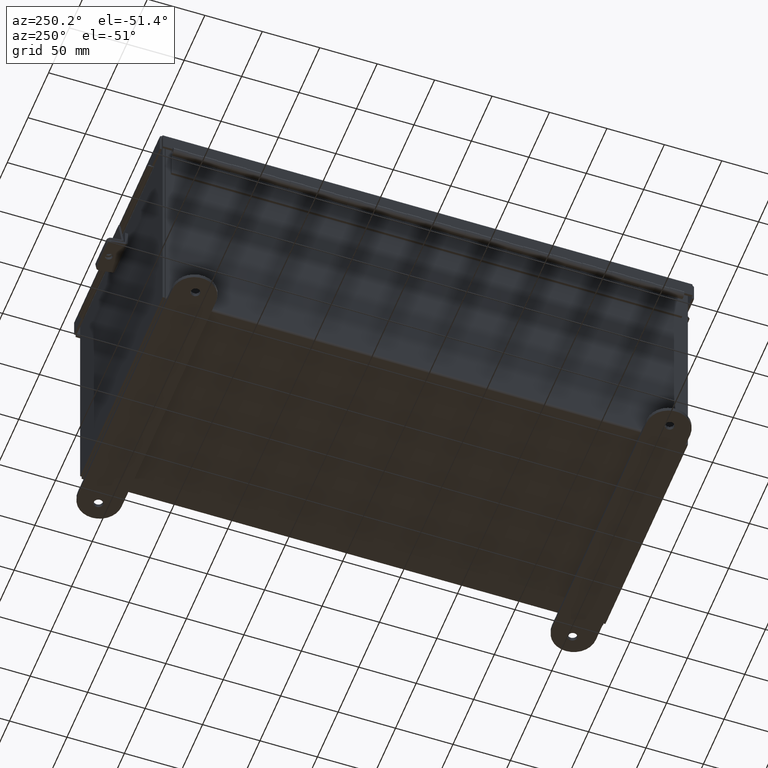
[diagram: clean part render]
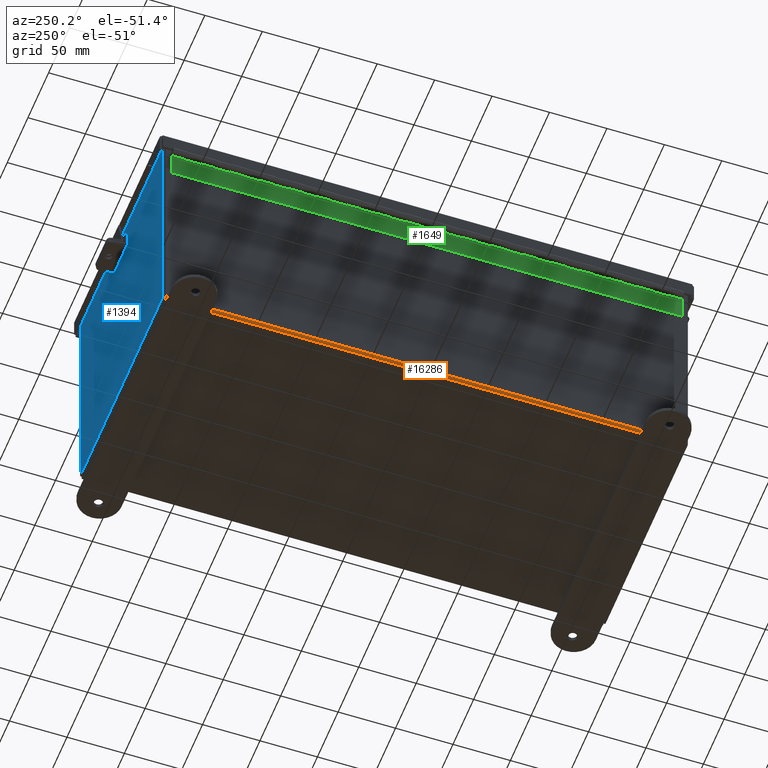
[diagram: same view with three faces highlighted in distinct colors, each labeled with its STEP entity id]
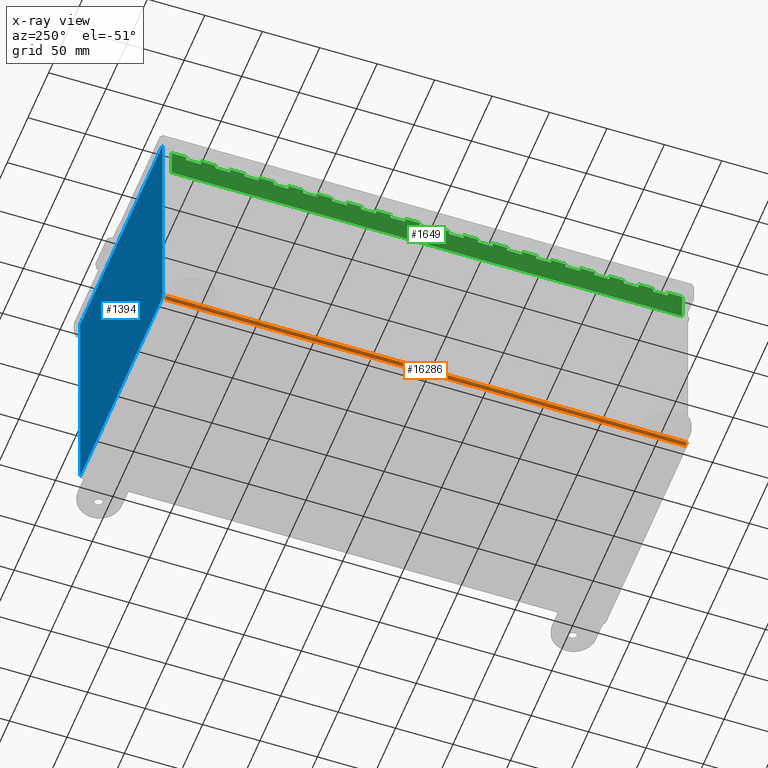
[diagram: x-ray of the same camera — body ghosted, the three highlighted faces saturated]
A machine part, auxiliary view with three faces highlighted in distinct colors.
The next image is the same camera in x-ray (body ghosted, the three faces saturated) — at least one of them is partly hidden behind the body in this view.
Their STEP definitions:

[orange] entity #16286 — the highlighted cylindrical surface (edge-blend (fillet) strip) has radius 2.2276 mm, axis along (0, -1, 0).
#360 = CARTESIAN_POINT ( 'NONE',  ( -3.912299999999999200, -8.925299999999996500, 0.01300000000000042300 ) ) ;
#1877 = DIRECTION ( 'NONE',  ( 0.0000000000000000000, 0.0000000000000000000, -1.000000000000000000 ) ) ;
#2773 = ORIENTED_EDGE ( 'NONE', *, *, #4183, .F. ) ;
#3153 = AXIS2_PLACEMENT_3D ( 'NONE', #360, #10839, #1877 ) ;
#3295 = DIRECTION ( 'NONE',  ( 0.0000000000000000000, -1.000000000000000000, 0.0000000000000000000 ) ) ;
#4093 = VECTOR ( 'NONE', #5475, 39.37007874015748100 ) ;
#4183 = EDGE_CURVE ( 'NONE', #10301, #8897, #15296, .T. ) ;
#5072 = CYLINDRICAL_SURFACE ( 'NONE', #15212, 0.08770000000000026400 ) ;
#5475 = DIRECTION ( 'NONE',  ( 1.065092651769884500E-031, 1.000000000000000000, -3.060791226809479400E-017 ) ) ;
#5535 = FACE_OUTER_BOUND ( 'NONE', #10209, .T. ) ;
#6492 = ORIENTED_EDGE ( 'NONE', *, *, #19234, .F. ) ;
#6797 = VERTEX_POINT ( 'NONE', #18677 ) ;
#7315 = CARTESIAN_POINT ( 'NONE',  ( -3.912299999999999200, -8.925299999999996500, -0.07469999999999966900 ) ) ;
#7416 = AXIS2_PLACEMENT_3D ( 'NONE', #8212, #18563, #9728 ) ;
#8044 = LINE ( 'NONE', #8337, #4093 ) ;
#8212 = CARTESIAN_POINT ( 'NONE',  ( -3.912299999999999200, 8.925299999999996500, 0.01300000000000042300 ) ) ;
#8337 = CARTESIAN_POINT ( 'NONE',  ( -3.999999999999999600, 8.925299999999996500, 0.01299999999999984300 ) ) ;
#8865 = CARTESIAN_POINT ( 'NONE',  ( -3.912299999999999200, 8.925299999999998200, -0.07470000000000000300 ) ) ;
#8897 = VERTEX_POINT ( 'NONE', #8865 ) ;
#9355 = VERTEX_POINT ( 'NONE', #15489 ) ;
#9728 = DIRECTION ( 'NONE',  ( 0.0000000000000000000, 0.0000000000000000000, -1.000000000000000000 ) ) ;
#9730 = CIRCLE ( 'NONE', #3153, 0.08770000000000009700 ) ;
#9804 = CIRCLE ( 'NONE', #7416, 0.08770000000000009700 ) ;
#10209 = EDGE_LOOP ( 'NONE', ( #2773, #6492, #10978, #14164 ) ) ;
#10301 = VERTEX_POINT ( 'NONE', #7315 ) ;
#10839 = DIRECTION ( 'NONE',  ( 0.0000000000000000000, -1.000000000000000000, 0.0000000000000000000 ) ) ;
#10978 = ORIENTED_EDGE ( 'NONE', *, *, #17940, .T. ) ;
#11880 = VECTOR ( 'NONE', #14793, 39.37007874015748100 ) ;
#12647 = EDGE_CURVE ( 'NONE', #8897, #9355, #9804, .T. ) ;
#13340 = CARTESIAN_POINT ( 'NONE',  ( -3.912299999999999200, -8.925299999999998200, -0.07469999999999966900 ) ) ;
#13780 = CARTESIAN_POINT ( 'NONE',  ( -3.912299999999999200, -8.925299999999998200, 0.01300000000000042300 ) ) ;
#14164 = ORIENTED_EDGE ( 'NONE', *, *, #12647, .F. ) ;
#14793 = DIRECTION ( 'NONE',  ( -0.0000000000000000000, 1.000000000000000000, -0.0000000000000000000 ) ) ;
#15212 = AXIS2_PLACEMENT_3D ( 'NONE', #13780, #3295, #16732 ) ;
#15296 = LINE ( 'NONE', #13340, #11880 ) ;
#15489 = CARTESIAN_POINT ( 'NONE',  ( -3.999999999999999600, 8.925299999999996500, 0.01300000000000011600 ) ) ;
#16286 = ADVANCED_FACE ( 'NONE', ( #5535 ), #5072, .T. ) ;
#16732 = DIRECTION ( 'NONE',  ( -1.000000000000000000, 0.0000000000000000000, -3.480030137311043200E-015 ) ) ;
#17940 = EDGE_CURVE ( 'NONE', #6797, #9355, #8044, .T. ) ;
#18563 = DIRECTION ( 'NONE',  ( -0.0000000000000000000, 1.000000000000000000, -0.0000000000000000000 ) ) ;
#18677 = CARTESIAN_POINT ( 'NONE',  ( -3.999999999999999600, -8.925299999999998200, 0.01300000000000039000 ) ) ;
#19234 = EDGE_CURVE ( 'NONE', #6797, #10301, #9730, .T. ) ;

[blue] entity #1394 — the highlighted planar face has unit normal (0, -1, 0).
#106 = ORIENTED_EDGE ( 'NONE', *, *, #19086, .T. ) ;
#418 = CARTESIAN_POINT ( 'NONE',  ( -3.600975000000000000, 0.0000000000000000000, 3.874949999999999200 ) ) ;
#596 = LINE ( 'NONE', #14291, #4096 ) ;
#666 = VERTEX_POINT ( 'NONE', #10781 ) ;
#692 = VERTEX_POINT ( 'NONE', #9246 ) ;
#822 = EDGE_CURVE ( 'NONE', #6467, #11210, #17951, .T. ) ;
#1004 = FACE_OUTER_BOUND ( 'NONE', #2651, .T. ) ;
#1089 = ORIENTED_EDGE ( 'NONE', *, *, #2119, .T. ) ;
#1389 = DIRECTION ( 'NONE',  ( -2.170286390199978800E-014, 0.0000000000000000000, -1.000000000000000000 ) ) ;
#1394 = ADVANCED_FACE ( 'NONE', ( #1004 ), #7605, .F. ) ;
#1851 = DIRECTION ( 'NONE',  ( -0.0000000000000000000, 1.000000000000000000, -0.0000000000000000000 ) ) ;
#1947 = DIRECTION ( 'NONE',  ( 0.0000000000000000000, 0.0000000000000000000, -1.000000000000000000 ) ) ;
#1997 = LINE ( 'NONE', #8120, #17307 ) ;
#2119 = EDGE_CURVE ( 'NONE', #10037, #6467, #7234, .T. ) ;
#2207 = DIRECTION ( 'NONE',  ( 1.000000000000000000, 0.0000000000000000000, 0.0000000000000000000 ) ) ;
#2651 = EDGE_LOOP ( 'NONE', ( #12038, #13603, #14547, #15011, #16145, #16589, #17717, #18214, #106, #1089, #4095, #4573 ) ) ;
#2891 = CARTESIAN_POINT ( 'NONE',  ( 3.619649999999999100, 0.0000000000000000000, 3.874949999999999200 ) ) ;
#3462 = VERTEX_POINT ( 'NONE', #10674 ) ;
#3813 = CARTESIAN_POINT ( 'NONE',  ( 0.0000000000000000000, 0.0000000000000000000, 0.0000000000000000000 ) ) ;
#3919 = LINE ( 'NONE', #12194, #10001 ) ;
#4095 = ORIENTED_EDGE ( 'NONE', *, *, #822, .T. ) ;
#4096 = VECTOR ( 'NONE', #17172, 39.37007874015748100 ) ;
#4573 = ORIENTED_EDGE ( 'NONE', *, *, #15770, .T. ) ;
#4583 = VECTOR ( 'NONE', #8736, 39.37007874015748100 ) ;
#5107 = DIRECTION ( 'NONE',  ( -0.0000000000000000000, -0.0000000000000000000, 1.000000000000000000 ) ) ;
#5199 = VECTOR ( 'NONE', #6293, 39.37007874015748100 ) ;
#5423 = CARTESIAN_POINT ( 'NONE',  ( -3.925300000000000500, 0.0000000000000000000, 3.925299999999999600 ) ) ;
#5606 = CIRCLE ( 'NONE', #8945, 0.01867500000000003900 ) ;
#5725 = CARTESIAN_POINT ( 'NONE',  ( 3.925299999999999100, 0.0000000000000000000, 3.925299999999999600 ) ) ;
#5955 = EDGE_CURVE ( 'NONE', #16236, #3462, #3919, .T. ) ;
#6053 = CARTESIAN_POINT ( 'NONE',  ( -3.925300000000000500, 0.0000000000000000000, 3.925299999999999600 ) ) ;
#6293 = DIRECTION ( 'NONE',  ( 1.000000000000000000, 0.0000000000000000000, 0.0000000000000000000 ) ) ;
#6467 = VERTEX_POINT ( 'NONE', #11898 ) ;
#7234 = LINE ( 'NONE', #12469, #19054 ) ;
#7322 = EDGE_CURVE ( 'NONE', #12262, #16236, #15708, .T. ) ;
#7457 = EDGE_CURVE ( 'NONE', #666, #11907, #1997, .T. ) ;
#7582 = EDGE_CURVE ( 'NONE', #11123, #12262, #596, .T. ) ;
#7605 = PLANE ( 'NONE',  #13042 ) ;
#7865 = CARTESIAN_POINT ( 'NONE',  ( -3.582300000000000000, 1.195183497228115100E-015, 3.912299999999999200 ) ) ;
#8058 = CARTESIAN_POINT ( 'NONE',  ( 3.925299999999999100, 0.0000000000000000000, -3.925300000000000500 ) ) ;
#8070 = CARTESIAN_POINT ( 'NONE',  ( 3.925299999999999100, 0.0000000000000000000, 3.925299999999999600 ) ) ;
#8120 = CARTESIAN_POINT ( 'NONE',  ( -3.925300000000000500, 0.0000000000000000000, 3.925299999999999600 ) ) ;
#8736 = DIRECTION ( 'NONE',  ( 0.0000000000000000000, 0.0000000000000000000, -1.000000000000000000 ) ) ;
#8765 = CARTESIAN_POINT ( 'NONE',  ( 3.582299999999999200, 0.0000000000000000000, 0.0000000000000000000 ) ) ;
#8812 = CARTESIAN_POINT ( 'NONE',  ( 3.619649999999915200, -0.0000000000000000000, -7.855677132287169600E-014 ) ) ;
#8945 = AXIS2_PLACEMENT_3D ( 'NONE', #10818, #1851, #12324 ) ;
#9049 = LINE ( 'NONE', #17065, #12597 ) ;
#9088 = VERTEX_POINT ( 'NONE', #18159 ) ;
#9117 = EDGE_CURVE ( 'NONE', #11123, #9088, #9166, .T. ) ;
#9166 = LINE ( 'NONE', #7865, #5199 ) ;
#9246 = CARTESIAN_POINT ( 'NONE',  ( 3.582299999999999200, 0.0000000000000000000, 3.874949999999999200 ) ) ;
#9844 = LINE ( 'NONE', #8765, #17658 ) ;
#10001 = VECTOR ( 'NONE', #16581, 39.37007874015748100 ) ;
#10037 = VERTEX_POINT ( 'NONE', #8058 ) ;
#10263 = EDGE_CURVE ( 'NONE', #692, #9088, #9844, .T. ) ;
#10627 = EDGE_CURVE ( 'NONE', #12273, #692, #5606, .T. ) ;
#10674 = CARTESIAN_POINT ( 'NONE',  ( -3.619650000000000500, 0.0000000000000000000, 3.925299999999999600 ) ) ;
#10781 = CARTESIAN_POINT ( 'NONE',  ( 3.619650000000000500, 0.0000000000000000000, 3.925299999999999600 ) ) ;
#10818 = CARTESIAN_POINT ( 'NONE',  ( 3.600974999999999100, 0.0000000000000000000, 3.874949999999999200 ) ) ;
#10894 = DIRECTION ( 'NONE',  ( -0.0000000000000000000, 1.000000000000000000, -0.0000000000000000000 ) ) ;
#11088 = EDGE_CURVE ( 'NONE', #666, #12273, #13083, .T. ) ;
#11123 = VERTEX_POINT ( 'NONE', #14651 ) ;
#11210 = VERTEX_POINT ( 'NONE', #6053 ) ;
#11898 = CARTESIAN_POINT ( 'NONE',  ( -3.925300000000000500, 0.0000000000000000000, -3.925300000000000500 ) ) ;
#11907 = VERTEX_POINT ( 'NONE', #8070 ) ;
#12038 = ORIENTED_EDGE ( 'NONE', *, *, #5955, .F. ) ;
#12194 = CARTESIAN_POINT ( 'NONE',  ( -3.619650000000000500, -0.0000000000000000000, 0.0000000000000000000 ) ) ;
#12262 = VERTEX_POINT ( 'NONE', #14716 ) ;
#12273 = VERTEX_POINT ( 'NONE', #2891 ) ;
#12324 = DIRECTION ( 'NONE',  ( 0.0000000000000000000, 0.0000000000000000000, -1.000000000000000000 ) ) ;
#12469 = CARTESIAN_POINT ( 'NONE',  ( -3.925300000000000500, 0.0000000000000000000, -3.925300000000000500 ) ) ;
#12597 = VECTOR ( 'NONE', #15593, 39.37007874015748100 ) ;
#12965 = DIRECTION ( 'NONE',  ( -1.000000000000000000, -0.0000000000000000000, -0.0000000000000000000 ) ) ;
#13042 = AXIS2_PLACEMENT_3D ( 'NONE', #3813, #13145, #14389 ) ;
#13083 = LINE ( 'NONE', #8812, #16479 ) ;
#13145 = DIRECTION ( 'NONE',  ( 0.0000000000000000000, -1.000000000000000000, 0.0000000000000000000 ) ) ;
#13603 = ORIENTED_EDGE ( 'NONE', *, *, #7322, .F. ) ;
#14291 = CARTESIAN_POINT ( 'NONE',  ( -3.582300000000000000, -0.0000000000000000000, 0.0000000000000000000 ) ) ;
#14389 = DIRECTION ( 'NONE',  ( 0.0000000000000000000, -0.0000000000000000000, -1.000000000000000000 ) ) ;
#14514 = VECTOR ( 'NONE', #5107, 39.37007874015748100 ) ;
#14547 = ORIENTED_EDGE ( 'NONE', *, *, #7582, .F. ) ;
#14651 = CARTESIAN_POINT ( 'NONE',  ( -3.582300000000000000, 1.195183497228115100E-015, 3.912299999999999200 ) ) ;
#14716 = CARTESIAN_POINT ( 'NONE',  ( -3.582300000000000000, -0.0000000000000000000, 3.874949999999999200 ) ) ;
#15011 = ORIENTED_EDGE ( 'NONE', *, *, #9117, .T. ) ;
#15593 = DIRECTION ( 'NONE',  ( 1.000000000000000000, 0.0000000000000000000, 0.0000000000000000000 ) ) ;
#15708 = CIRCLE ( 'NONE', #17058, 0.01867500000000003900 ) ;
#15770 = EDGE_CURVE ( 'NONE', #11210, #3462, #9049, .T. ) ;
#16145 = ORIENTED_EDGE ( 'NONE', *, *, #10263, .F. ) ;
#16236 = VERTEX_POINT ( 'NONE', #18069 ) ;
#16479 = VECTOR ( 'NONE', #1389, 39.37007874015748100 ) ;
#16581 = DIRECTION ( 'NONE',  ( 0.0000000000000000000, 0.0000000000000000000, 1.000000000000000000 ) ) ;
#16589 = ORIENTED_EDGE ( 'NONE', *, *, #10627, .F. ) ;
#17058 = AXIS2_PLACEMENT_3D ( 'NONE', #418, #10894, #1947 ) ;
#17065 = CARTESIAN_POINT ( 'NONE',  ( -3.925300000000000500, 0.0000000000000000000, 3.925299999999999600 ) ) ;
#17172 = DIRECTION ( 'NONE',  ( 0.0000000000000000000, 0.0000000000000000000, -1.000000000000000000 ) ) ;
#17307 = VECTOR ( 'NONE', #2207, 39.37007874015748100 ) ;
#17329 = LINE ( 'NONE', #5725, #4583 ) ;
#17658 = VECTOR ( 'NONE', #19108, 39.37007874015748100 ) ;
#17717 = ORIENTED_EDGE ( 'NONE', *, *, #11088, .F. ) ;
#17951 = LINE ( 'NONE', #5423, #14514 ) ;
#18069 = CARTESIAN_POINT ( 'NONE',  ( -3.619650000000000500, 0.0000000000000000000, 3.874949999999999200 ) ) ;
#18159 = CARTESIAN_POINT ( 'NONE',  ( 3.582299999999999200, 0.0000000000000000000, 3.912299999999999200 ) ) ;
#18214 = ORIENTED_EDGE ( 'NONE', *, *, #7457, .T. ) ;
#19054 = VECTOR ( 'NONE', #12965, 39.37007874015748100 ) ;
#19086 = EDGE_CURVE ( 'NONE', #11907, #10037, #17329, .T. ) ;
#19108 = DIRECTION ( 'NONE',  ( 0.0000000000000000000, 0.0000000000000000000, 1.000000000000000000 ) ) ;

[green] entity #1649 — the highlighted planar face has unit normal (1, -0, 0).
#23 = ORIENTED_EDGE ( 'NONE', *, *, #5558, .T. ) ;
#43 = CARTESIAN_POINT ( 'NONE',  ( 0.0000000000000000000, 2.500000000000002200, 0.0000000000000000000 ) ) ;
#63 = CARTESIAN_POINT ( 'NONE',  ( 0.2730000000000000200, -16.00000000000000000, 0.0000000000000000000 ) ) ;
#137 = CARTESIAN_POINT ( 'NONE',  ( 0.1365000000000000100, 15.00000000000000000, -1.707404996040164500E-017 ) ) ;
#184 = DIRECTION ( 'NONE',  ( 0.0000000000000000000, 1.000000000000000000, 0.0000000000000000000 ) ) ;
#322 = CARTESIAN_POINT ( 'NONE',  ( 0.0000000000000000000, 1.500000000000000900, 0.0000000000000000000 ) ) ;
#330 = DIRECTION ( 'NONE',  ( 0.0000000000000000000, 1.000000000000000000, 0.0000000000000000000 ) ) ;
#383 = CARTESIAN_POINT ( 'NONE',  ( 0.0000000000000000000, 0.0000000000000000000, 0.0000000000000000000 ) ) ;
#384 = EDGE_CURVE ( 'NONE', #6614, #7369, #12735, .T. ) ;
#534 = LINE ( 'NONE', #7155, #15882 ) ;
#654 = EDGE_CURVE ( 'NONE', #13640, #7415, #8955, .T. ) ;
#668 = CARTESIAN_POINT ( 'NONE',  ( 0.2730000000000000200, -11.99999999999999800, 0.0000000000000000000 ) ) ;
#695 = VECTOR ( 'NONE', #13386, 39.37007874015748100 ) ;
#696 = ORIENTED_EDGE ( 'NONE', *, *, #17661, .F. ) ;
#714 = VECTOR ( 'NONE', #4428, 39.37007874015748100 ) ;
#734 = ORIENTED_EDGE ( 'NONE', *, *, #5291, .F. ) ;
#800 = CARTESIAN_POINT ( 'NONE',  ( 0.0000000000000000000, 8.500000000000001800, 0.0000000000000000000 ) ) ;
#809 = VECTOR ( 'NONE', #5022, 39.37007874015748100 ) ;
#838 = LINE ( 'NONE', #3132, #15704 ) ;
#931 = EDGE_CURVE ( 'NONE', #13640, #6614, #12714, .T. ) ;
#987 = ORIENTED_EDGE ( 'NONE', *, *, #16074, .F. ) ;
#1035 = VECTOR ( 'NONE', #10909, 39.37007874015748100 ) ;
#1041 = VECTOR ( 'NONE', #10265, 39.37007874015748100 ) ;
#1058 = CARTESIAN_POINT ( 'NONE',  ( 0.2730000000000000200, 5.000000000000000000, 0.0000000000000000000 ) ) ;
#1088 = EDGE_CURVE ( 'NONE', #16804, #12366, #5895, .T. ) ;
#1142 = EDGE_CURVE ( 'NONE', #11253, #14222, #534, .T. ) ;
#1234 = CARTESIAN_POINT ( 'NONE',  ( 0.2730000000000000200, 5.500000000000001800, 0.0000000000000000000 ) ) ;
#1338 = VECTOR ( 'NONE', #5469, 39.37007874015748100 ) ;
#1347 = LINE ( 'NONE', #14746, #12807 ) ;
#1373 = CARTESIAN_POINT ( 'NONE',  ( 0.0000000000000000000, 17.50000000000000000, 0.0000000000000000000 ) ) ;
#1507 = EDGE_CURVE ( 'NONE', #5952, #5786, #7493, .T. ) ;
#1593 = LINE ( 'NONE', #9495, #5563 ) ;
#1600 = ORIENTED_EDGE ( 'NONE', *, *, #7669, .F. ) ;
#1606 = DIRECTION ( 'NONE',  ( 0.0000000000000000000, 1.000000000000000000, 0.0000000000000000000 ) ) ;
#1636 = EDGE_CURVE ( 'NONE', #11473, #13760, #8679, .T. ) ;
#1649 = ADVANCED_FACE ( 'NONE', ( #15627 ), #6317, .F. ) ;
#1658 = CARTESIAN_POINT ( 'NONE',  ( 0.1365000000000000100, 16.00000000000000400, -1.707404996040164500E-017 ) ) ;
#1701 = EDGE_CURVE ( 'NONE', #12658, #16096, #11282, .T. ) ;
#1792 = ORIENTED_EDGE ( 'NONE', *, *, #931, .F. ) ;
#1811 = CARTESIAN_POINT ( 'NONE',  ( 0.1365000000000000100, 3.000000000000001300, -1.707404996040164500E-017 ) ) ;
#1828 = DIRECTION ( 'NONE',  ( -1.000000000000000000, 0.0000000000000000000, 0.0000000000000000000 ) ) ;
#1870 = VECTOR ( 'NONE', #10379, 39.37007874015748100 ) ;
#1906 = VERTEX_POINT ( 'NONE', #12602 ) ;
#1956 = DIRECTION ( 'NONE',  ( -1.000000000000000000, 0.0000000000000000000, 0.0000000000000000000 ) ) ;
#1968 = LINE ( 'NONE', #10151, #17279 ) ;
#1983 = EDGE_CURVE ( 'NONE', #1906, #17493, #6073, .T. ) ;
#2009 = LINE ( 'NONE', #2447, #17317 ) ;
#2017 = CARTESIAN_POINT ( 'NONE',  ( 0.2730000000000000200, 0.9999999999999992200, 0.0000000000000000000 ) ) ;
#2051 = VECTOR ( 'NONE', #330, 39.37007874015748100 ) ;
#2131 = VERTEX_POINT ( 'NONE', #9569 ) ;
#2147 = CARTESIAN_POINT ( 'NONE',  ( 0.1365000000000000100, 0.5000000000000017800, -1.707404996040164500E-017 ) ) ;
#2277 = VERTEX_POINT ( 'NONE', #10099 ) ;
#2288 = VERTEX_POINT ( 'NONE', #9903 ) ;
#2357 = CARTESIAN_POINT ( 'NONE',  ( 0.0000000000000000000, 6.500000000000000900, 0.0000000000000000000 ) ) ;
#2447 = CARTESIAN_POINT ( 'NONE',  ( 1.360920612228351400E-013, 7.000000000000000900, 0.0000000000000000000 ) ) ;
#2466 = EDGE_CURVE ( 'NONE', #2725, #17493, #4668, .T. ) ;
#2467 = CARTESIAN_POINT ( 'NONE',  ( 1.360920612228351400E-013, 15.00000000000000000, 0.0000000000000000000 ) ) ;
#2484 = CARTESIAN_POINT ( 'NONE',  ( 0.2730000000000000200, 1.999999999999998400, 0.0000000000000000000 ) ) ;
#2553 = EDGE_LOOP ( 'NONE', ( #13143, #18424, #9897, #9801, #10506, #11020, #696, #987, #2565, #2835, #4018, #4406, #5608, #5845, #6968, #8437, #15790, #19219, #18780, #17375, #17147, #15769, #15334, #15090, #13490, #12385, #11682, #10258, #9561, #8846, #8376, #7878, #6949, #6722, #6017, #5109, #4854, #3457, #2786, #1600, #18832, #17895, #15607, #11981, #11739, #8909, #8428, #6289, #5839, #3765, #2826, #734, #23, #18774, #17795, #17366, #15744, #15306, #14399, #13724, #13234, #12381, #12117, #11215, #10270, #9797, #9281, #8347, #8103, #7355, #6444, #1792 ) ) ;
#2565 = ORIENTED_EDGE ( 'NONE', *, *, #9126, .T. ) ;
#2591 = CARTESIAN_POINT ( 'NONE',  ( 0.2730000000000000200, -8.000000000000000000, 0.0000000000000000000 ) ) ;
#2628 = VECTOR ( 'NONE', #14139, 39.37007874015748100 ) ;
#2657 = CARTESIAN_POINT ( 'NONE',  ( 0.2730000000000000200, 11.50000000000000200, 0.0000000000000000000 ) ) ;
#2725 = VERTEX_POINT ( 'NONE', #1811 ) ;
#2786 = ORIENTED_EDGE ( 'NONE', *, *, #6303, .F. ) ;
#2826 = ORIENTED_EDGE ( 'NONE', *, *, #1088, .F. ) ;
#2835 = ORIENTED_EDGE ( 'NONE', *, *, #7106, .F. ) ;
#2897 = DIRECTION ( 'NONE',  ( -1.000000000000000000, 8.005415366049124900E-015, 0.0000000000000000000 ) ) ;
#2913 = LINE ( 'NONE', #6909, #6848 ) ;
#2918 = CARTESIAN_POINT ( 'NONE',  ( 0.1365000000000000100, 6.500000000000000900, -1.707404996040164500E-017 ) ) ;
#2943 = CARTESIAN_POINT ( 'NONE',  ( 1.360920612228351400E-013, 2.000000000000000400, 0.0000000000000000000 ) ) ;
#3010 = VECTOR ( 'NONE', #11135, 39.37007874015748100 ) ;
#3018 = LINE ( 'NONE', #13405, #3956 ) ;
#3020 = DIRECTION ( 'NONE',  ( 0.0000000000000000000, 1.000000000000000000, 0.0000000000000000000 ) ) ;
#3062 = VERTEX_POINT ( 'NONE', #3335 ) ;
#3069 = CARTESIAN_POINT ( 'NONE',  ( 0.1365000000000000100, 0.0000000000000000000, -1.707404996040164500E-017 ) ) ;
#3132 = CARTESIAN_POINT ( 'NONE',  ( 1.360920612228351400E-013, 17.00000000000000000, 0.0000000000000000000 ) ) ;
#3155 = VECTOR ( 'NONE', #5911, 39.37007874015748100 ) ;
#3173 = VECTOR ( 'NONE', #12682, 39.37007874015748100 ) ;
#3196 = DIRECTION ( 'NONE',  ( -1.000000000000000000, 0.0000000000000000000, 0.0000000000000000000 ) ) ;
#3203 = VERTEX_POINT ( 'NONE', #16760 ) ;
#3231 = EDGE_CURVE ( 'NONE', #13046, #11729, #8375, .T. ) ;
#3246 = DIRECTION ( 'NONE',  ( 0.0000000000000000000, 1.000000000000000000, 0.0000000000000000000 ) ) ;
#3335 = CARTESIAN_POINT ( 'NONE',  ( 0.1365000000000000100, 4.000000000000000900, -1.707404996040164500E-017 ) ) ;
#3365 = CARTESIAN_POINT ( 'NONE',  ( 0.2730000000000000200, 0.5000000000000017800, 0.0000000000000000000 ) ) ;
#3382 = EDGE_CURVE ( 'NONE', #9290, #11546, #5103, .T. ) ;
#3398 = DIRECTION ( 'NONE',  ( -1.000000000000000000, 8.005415366049124900E-015, 0.0000000000000000000 ) ) ;
#3448 = DIRECTION ( 'NONE',  ( 0.0000000000000000000, 1.000000000000000000, 0.0000000000000000000 ) ) ;
#3451 = CARTESIAN_POINT ( 'NONE',  ( 0.2730000000000000200, -2.999999999999999600, 0.0000000000000000000 ) ) ;
#3457 = ORIENTED_EDGE ( 'NONE', *, *, #17896, .F. ) ;
#3480 = CARTESIAN_POINT ( 'NONE',  ( 0.1365000000000000100, 0.0000000000000000000, -1.707404996040164500E-017 ) ) ;
#3482 = EDGE_CURVE ( 'NONE', #7691, #18347, #11203, .T. ) ;
#3564 = CARTESIAN_POINT ( 'NONE',  ( 0.2730000000000000200, 14.00000000000000000, 0.0000000000000000000 ) ) ;
#3610 = VECTOR ( 'NONE', #13439, 39.37007874015748100 ) ;
#3645 = LINE ( 'NONE', #18965, #18935 ) ;
#3711 = CARTESIAN_POINT ( 'NONE',  ( 0.1365000000000000100, 0.0000000000000000000, -1.707404996040164500E-017 ) ) ;
#3765 = ORIENTED_EDGE ( 'NONE', *, *, #5311, .F. ) ;
#3797 = DIRECTION ( 'NONE',  ( -1.000000000000000000, 0.0000000000000000000, -0.0000000000000000000 ) ) ;
#3822 = DIRECTION ( 'NONE',  ( -7.805279981897894900E-018, 1.000000000000000000, 0.0000000000000000000 ) ) ;
#3834 = CARTESIAN_POINT ( 'NONE',  ( 0.1365000000000000100, 0.0000000000000000000, -1.707404996040164500E-017 ) ) ;
#3843 = EDGE_CURVE ( 'NONE', #6678, #2725, #5994, .T. ) ;
#3858 = DIRECTION ( 'NONE',  ( 0.0000000000000000000, 0.0000000000000000000, -1.000000000000000000 ) ) ;
#3918 = CARTESIAN_POINT ( 'NONE',  ( 0.1365000000000000100, 1.500000000000000900, -1.707404996040164500E-017 ) ) ;
#3933 = LINE ( 'NONE', #13448, #11431 ) ;
#3945 = VECTOR ( 'NONE', #14713, 39.37007874015748100 ) ;
#3956 = VECTOR ( 'NONE', #15521, 39.37007874015748100 ) ;
#3966 = CARTESIAN_POINT ( 'NONE',  ( 0.0000000000000000000, 4.500000000000002700, 0.0000000000000000000 ) ) ;
#3970 = VERTEX_POINT ( 'NONE', #7496 ) ;
#4018 = ORIENTED_EDGE ( 'NONE', *, *, #1142, .F. ) ;
#4031 = EDGE_CURVE ( 'NONE', #3970, #13963, #18527, .T. ) ;
#4171 = VERTEX_POINT ( 'NONE', #15646 ) ;
#4202 = DIRECTION ( 'NONE',  ( 0.0000000000000000000, 1.000000000000000000, 0.0000000000000000000 ) ) ;
#4223 = VERTEX_POINT ( 'NONE', #11685 ) ;
#4233 = CARTESIAN_POINT ( 'NONE',  ( 0.1365000000000000100, 13.50000000000000200, -1.707404996040164500E-017 ) ) ;
#4235 = CARTESIAN_POINT ( 'NONE',  ( 0.0000000000000000000, 12.50000000000000000, 0.0000000000000000000 ) ) ;
#4276 = VECTOR ( 'NONE', #184, 39.37007874015748100 ) ;
#4380 = CARTESIAN_POINT ( 'NONE',  ( 1.360920612228351400E-013, 8.000000000000001800, 0.0000000000000000000 ) ) ;
#4383 = EDGE_CURVE ( 'NONE', #15815, #11546, #8569, .T. ) ;
#4406 = ORIENTED_EDGE ( 'NONE', *, *, #13481, .F. ) ;
#4428 = DIRECTION ( 'NONE',  ( 0.0000000000000000000, 1.000000000000000000, 0.0000000000000000000 ) ) ;
#4453 = DIRECTION ( 'NONE',  ( 0.0000000000000000000, 1.000000000000000000, 0.0000000000000000000 ) ) ;
#4483 = DIRECTION ( 'NONE',  ( -1.000000000000000000, 0.0000000000000000000, 0.0000000000000000000 ) ) ;
#4528 = CARTESIAN_POINT ( 'NONE',  ( 0.2730000000000000200, -2.000000000000000000, 0.0000000000000000000 ) ) ;
#4544 = CARTESIAN_POINT ( 'NONE',  ( 0.0000000000000000000, 10.50000000000000200, 0.0000000000000000000 ) ) ;
#4571 = VERTEX_POINT ( 'NONE', #4577 ) ;
#4577 = CARTESIAN_POINT ( 'NONE',  ( 0.2730000000000000200, 10.00000000000000000, 0.0000000000000000000 ) ) ;
#4668 = LINE ( 'NONE', #7032, #714 ) ;
#4788 = VERTEX_POINT ( 'NONE', #7554 ) ;
#4854 = ORIENTED_EDGE ( 'NONE', *, *, #5964, .T. ) ;
#4898 = CARTESIAN_POINT ( 'NONE',  ( 1.360920612228351400E-013, 3.000000000000001800, 0.0000000000000000000 ) ) ;
#4916 = LINE ( 'NONE', #4235, #15837 ) ;
#4921 = VERTEX_POINT ( 'NONE', #16880 ) ;
#4973 = CARTESIAN_POINT ( 'NONE',  ( 1.136499999999999800, 17.50000000000000000, 0.0000000000000000000 ) ) ;
#4982 = EDGE_CURVE ( 'NONE', #8177, #6678, #3018, .T. ) ;
#4995 = LINE ( 'NONE', #5727, #1041 ) ;
#5016 = DIRECTION ( 'NONE',  ( 0.0000000000000000000, 1.000000000000000000, 0.0000000000000000000 ) ) ;
#5022 = DIRECTION ( 'NONE',  ( -1.000000000000000000, 8.005415366049124900E-015, 0.0000000000000000000 ) ) ;
#5028 = LINE ( 'NONE', #3834, #8528 ) ;
#5103 = LINE ( 'NONE', #3069, #9064 ) ;
#5109 = ORIENTED_EDGE ( 'NONE', *, *, #18272, .F. ) ;
#5125 = LINE ( 'NONE', #4380, #8623 ) ;
#5263 = CARTESIAN_POINT ( 'NONE',  ( 0.2730000000000000200, 6.999999999999998200, 0.0000000000000000000 ) ) ;
#5267 = LINE ( 'NONE', #16748, #5734 ) ;
#5291 = EDGE_CURVE ( 'NONE', #15984, #16804, #10731, .T. ) ;
#5305 = VECTOR ( 'NONE', #8348, 39.37007874015748100 ) ;
#5311 = EDGE_CURVE ( 'NONE', #12366, #16096, #9297, .T. ) ;
#5366 = LINE ( 'NONE', #6216, #17191 ) ;
#5411 = CARTESIAN_POINT ( 'NONE',  ( 0.1365000000000000100, 17.50000000000000000, -1.707404996040164500E-017 ) ) ;
#5465 = CARTESIAN_POINT ( 'NONE',  ( 0.1365000000000000100, 0.0000000000000000000, -1.707404996040164500E-017 ) ) ;
#5469 = DIRECTION ( 'NONE',  ( -1.000000000000000000, 8.005415366049124900E-015, 0.0000000000000000000 ) ) ;
#5473 = DIRECTION ( 'NONE',  ( -1.000000000000000000, 8.005415366049124900E-015, 0.0000000000000000000 ) ) ;
#5476 = CARTESIAN_POINT ( 'NONE',  ( 0.2730000000000000200, -10.00000000000000000, 0.0000000000000000000 ) ) ;
#5488 = VECTOR ( 'NONE', #15647, 39.37007874015748100 ) ;
#5558 = EDGE_CURVE ( 'NONE', #15984, #17948, #1593, .T. ) ;
#5563 = VECTOR ( 'NONE', #11024, 39.37007874015748100 ) ;
#5570 = CARTESIAN_POINT ( 'NONE',  ( 1.136500000000000100, 0.0000000000000000000, 0.0000000000000000000 ) ) ;
#5608 = ORIENTED_EDGE ( 'NONE', *, *, #7479, .T. ) ;
#5665 = LINE ( 'NONE', #16752, #16559 ) ;
#5714 = VECTOR ( 'NONE', #4453, 39.37007874015748100 ) ;
#5727 = CARTESIAN_POINT ( 'NONE',  ( 1.360920612228351400E-013, 11.00000000000000200, 0.0000000000000000000 ) ) ;
#5734 = VECTOR ( 'NONE', #7860, 39.37007874015748100 ) ;
#5742 = CARTESIAN_POINT ( 'NONE',  ( 0.2730000000000000200, -9.000000000000000000, 0.0000000000000000000 ) ) ;
#5786 = VERTEX_POINT ( 'NONE', #8699 ) ;
#5791 = LINE ( 'NONE', #11751, #13719 ) ;
#5815 = VECTOR ( 'NONE', #1606, 39.37007874015748100 ) ;
#5833 = VERTEX_POINT ( 'NONE', #17732 ) ;
#5839 = ORIENTED_EDGE ( 'NONE', *, *, #1701, .T. ) ;
#5840 = EDGE_CURVE ( 'NONE', #7691, #14613, #8814, .T. ) ;
#5845 = ORIENTED_EDGE ( 'NONE', *, *, #1507, .F. ) ;
#5858 = CARTESIAN_POINT ( 'NONE',  ( 0.2730000000000000200, 14.50000000000000200, 0.0000000000000000000 ) ) ;
#5867 = EDGE_CURVE ( 'NONE', #8896, #3203, #7869, .T. ) ;
#5895 = LINE ( 'NONE', #9949, #17704 ) ;
#5911 = DIRECTION ( 'NONE',  ( 0.0000000000000000000, 1.000000000000000000, 0.0000000000000000000 ) ) ;
#5935 = VECTOR ( 'NONE', #18505, 39.37007874015748100 ) ;
#5952 = VERTEX_POINT ( 'NONE', #137 ) ;
#5964 = EDGE_CURVE ( 'NONE', #16979, #2288, #17806, .T. ) ;
#5989 = EDGE_CURVE ( 'NONE', #3970, #7415, #9526, .T. ) ;
#5994 = LINE ( 'NONE', #4898, #9533 ) ;
#5996 = DIRECTION ( 'NONE',  ( 0.0000000000000000000, 1.000000000000000000, 0.0000000000000000000 ) ) ;
#6017 = ORIENTED_EDGE ( 'NONE', *, *, #19002, .F. ) ;
#6022 = CARTESIAN_POINT ( 'NONE',  ( 0.2730000000000000200, -11.00000000000000000, 0.0000000000000000000 ) ) ;
#6057 = CARTESIAN_POINT ( 'NONE',  ( 0.2730000000000000200, -4.000000000000000000, 0.0000000000000000000 ) ) ;
#6073 = LINE ( 'NONE', #8310, #17430 ) ;
#6123 = DIRECTION ( 'NONE',  ( 0.0000000000000000000, 1.000000000000000000, 0.0000000000000000000 ) ) ;
#6216 = CARTESIAN_POINT ( 'NONE',  ( 1.360920612228351400E-013, 14.00000000000000200, 0.0000000000000000000 ) ) ;
#6289 = ORIENTED_EDGE ( 'NONE', *, *, #18967, .F. ) ;
#6303 = EDGE_CURVE ( 'NONE', #6438, #13109, #9257, .T. ) ;
#6317 = PLANE ( 'NONE',  #16575 ) ;
#6332 = CARTESIAN_POINT ( 'NONE',  ( 0.2730000000000000200, -5.000000000000000000, 0.0000000000000000000 ) ) ;
#6407 = VERTEX_POINT ( 'NONE', #4233 ) ;
#6438 = VERTEX_POINT ( 'NONE', #17628 ) ;
#6444 = ORIENTED_EDGE ( 'NONE', *, *, #384, .F. ) ;
#6536 = LINE ( 'NONE', #3480, #10532 ) ;
#6614 = VERTEX_POINT ( 'NONE', #2017 ) ;
#6669 = LINE ( 'NONE', #3711, #3173 ) ;
#6671 = DIRECTION ( 'NONE',  ( 0.0000000000000000000, 1.000000000000000000, 0.0000000000000000000 ) ) ;
#6678 = VERTEX_POINT ( 'NONE', #15476 ) ;
#6693 = VECTOR ( 'NONE', #18977, 39.37007874015748100 ) ;
#6719 = EDGE_CURVE ( 'NONE', #17707, #14613, #6669, .T. ) ;
#6722 = ORIENTED_EDGE ( 'NONE', *, *, #17034, .F. ) ;
#6741 = CARTESIAN_POINT ( 'NONE',  ( 0.0000000000000000000, 15.50000000000000200, 0.0000000000000000000 ) ) ;
#6742 = CARTESIAN_POINT ( 'NONE',  ( 0.2730000000000000200, -5.999999999999999100, 0.0000000000000000000 ) ) ;
#6758 = VERTEX_POINT ( 'NONE', #5263 ) ;
#6847 = DIRECTION ( 'NONE',  ( 0.0000000000000000000, 1.000000000000000000, 0.0000000000000000000 ) ) ;
#6848 = VECTOR ( 'NONE', #14340, 39.37007874015748100 ) ;
#6853 = EDGE_CURVE ( 'NONE', #3203, #5952, #8776, .T. ) ;
#6893 = VECTOR ( 'NONE', #6951, 39.37007874015748100 ) ;
#6907 = DIRECTION ( 'NONE',  ( -1.000000000000000000, 8.005415366049124900E-015, 0.0000000000000000000 ) ) ;
#6909 = CARTESIAN_POINT ( 'NONE',  ( 0.2730000000000000200, -7.000000000000000000, 0.0000000000000000000 ) ) ;
#6949 = ORIENTED_EDGE ( 'NONE', *, *, #16154, .T. ) ;
#6951 = DIRECTION ( 'NONE',  ( 0.0000000000000000000, 1.000000000000000000, 0.0000000000000000000 ) ) ;
#6968 = ORIENTED_EDGE ( 'NONE', *, *, #6853, .F. ) ;
#7007 = DIRECTION ( 'NONE',  ( -1.000000000000000000, 8.005415366049124900E-015, 0.0000000000000000000 ) ) ;
#7032 = CARTESIAN_POINT ( 'NONE',  ( 0.1365000000000000100, 0.0000000000000000000, -1.707404996040164500E-017 ) ) ;
#7106 = EDGE_CURVE ( 'NONE', #14222, #4921, #18942, .T. ) ;
#7124 = VECTOR ( 'NONE', #18004, 39.37007874015748100 ) ;
#7155 = CARTESIAN_POINT ( 'NONE',  ( 1.360920612228351400E-013, 16.00000000000000400, 0.0000000000000000000 ) ) ;
#7173 = EDGE_CURVE ( 'NONE', #8177, #16115, #10198, .T. ) ;
#7197 = LINE ( 'NONE', #3451, #14650 ) ;
#7292 = CARTESIAN_POINT ( 'NONE',  ( 0.2730000000000000200, 10.50000000000000200, 0.0000000000000000000 ) ) ;
#7355 = ORIENTED_EDGE ( 'NONE', *, *, #18374, .F. ) ;
#7369 = VERTEX_POINT ( 'NONE', #12480 ) ;
#7415 = VERTEX_POINT ( 'NONE', #2147 ) ;
#7479 = EDGE_CURVE ( 'NONE', #4171, #5786, #16858, .T. ) ;
#7493 = LINE ( 'NONE', #15611, #2628 ) ;
#7496 = CARTESIAN_POINT ( 'NONE',  ( 0.1364999999999999000, 0.0000000000000000000, 0.0000000000000000000 ) ) ;
#7512 = CARTESIAN_POINT ( 'NONE',  ( 0.2730000000000000200, 9.500000000000001800, 0.0000000000000000000 ) ) ;
#7532 = EDGE_CURVE ( 'NONE', #11591, #17948, #5028, .T. ) ;
#7545 = CARTESIAN_POINT ( 'NONE',  ( 0.1365000000000000100, 6.000000000000000900, -1.707404996040164500E-017 ) ) ;
#7554 = CARTESIAN_POINT ( 'NONE',  ( 0.1365000000000000100, 7.000000000000000000, -1.707404996040164500E-017 ) ) ;
#7602 = CARTESIAN_POINT ( 'NONE',  ( 1.360920612228351400E-013, 1.000000000000001300, 0.0000000000000000000 ) ) ;
#7669 = EDGE_CURVE ( 'NONE', #13518, #6438, #14552, .T. ) ;
#7683 = CARTESIAN_POINT ( 'NONE',  ( 0.1365000000000000100, 11.00000000000000200, -1.707404996040164500E-017 ) ) ;
#7691 = VERTEX_POINT ( 'NONE', #2657 ) ;
#7696 = DIRECTION ( 'NONE',  ( -1.000000000000000000, 0.0000000000000000000, 0.0000000000000000000 ) ) ;
#7727 = CARTESIAN_POINT ( 'NONE',  ( 0.1365000000000000100, 14.00000000000000200, -1.707404996040164500E-017 ) ) ;
#7735 = CARTESIAN_POINT ( 'NONE',  ( 0.1365000000000000100, 0.0000000000000000000, -1.707404996040164500E-017 ) ) ;
#7818 = CARTESIAN_POINT ( 'NONE',  ( 0.2730000000000000200, 11.00000000000000000, 0.0000000000000000000 ) ) ;
#7860 = DIRECTION ( 'NONE',  ( 0.0000000000000000000, 1.000000000000000000, 0.0000000000000000000 ) ) ;
#7869 = LINE ( 'NONE', #4528, #11416 ) ;
#7878 = ORIENTED_EDGE ( 'NONE', *, *, #10144, .F. ) ;
#7954 = VERTEX_POINT ( 'NONE', #7818 ) ;
#8103 = ORIENTED_EDGE ( 'NONE', *, *, #17734, .T. ) ;
#8177 = VERTEX_POINT ( 'NONE', #12755 ) ;
#8182 = CARTESIAN_POINT ( 'NONE',  ( 0.2730000000000000200, 12.99999999999999800, 0.0000000000000000000 ) ) ;
#8310 = CARTESIAN_POINT ( 'NONE',  ( 0.0000000000000000000, 3.500000000000001300, 0.0000000000000000000 ) ) ;
#8312 = EDGE_CURVE ( 'NONE', #13760, #2131, #1968, .T. ) ;
#8347 = ORIENTED_EDGE ( 'NONE', *, *, #14179, .F. ) ;
#8348 = DIRECTION ( 'NONE',  ( -1.000000000000000000, 0.0000000000000000000, 0.0000000000000000000 ) ) ;
#8353 = EDGE_CURVE ( 'NONE', #7954, #17707, #4995, .T. ) ;
#8358 = VECTOR ( 'NONE', #3246, 39.37007874015748100 ) ;
#8375 = LINE ( 'NONE', #14958, #3945 ) ;
#8376 = ORIENTED_EDGE ( 'NONE', *, *, #8353, .F. ) ;
#8380 = DIRECTION ( 'NONE',  ( -1.000000000000000000, 0.0000000000000000000, 0.0000000000000000000 ) ) ;
#8428 = ORIENTED_EDGE ( 'NONE', *, *, #17340, .F. ) ;
#8437 = ORIENTED_EDGE ( 'NONE', *, *, #5867, .F. ) ;
#8470 = DIRECTION ( 'NONE',  ( -1.000000000000000000, 0.0000000000000000000, 0.0000000000000000000 ) ) ;
#8515 = CARTESIAN_POINT ( 'NONE',  ( 0.2730000000000000200, 11.99999999999999800, 0.0000000000000000000 ) ) ;
#8528 = VECTOR ( 'NONE', #15700, 39.37007874015748100 ) ;
#8569 = LINE ( 'NONE', #1373, #12101 ) ;
#8579 = DIRECTION ( 'NONE',  ( 0.0000000000000000000, 1.000000000000000000, 0.0000000000000000000 ) ) ;
#8623 = VECTOR ( 'NONE', #2897, 39.37007874015748100 ) ;
#8634 = DIRECTION ( 'NONE',  ( 0.0000000000000000000, 1.000000000000000000, 0.0000000000000000000 ) ) ;
#8679 = LINE ( 'NONE', #6057, #12213 ) ;
#8691 = CARTESIAN_POINT ( 'NONE',  ( 0.1365000000000000100, 3.500000000000001300, -1.707404996040164500E-017 ) ) ;
#8699 = CARTESIAN_POINT ( 'NONE',  ( 0.1365000000000000100, 15.50000000000000200, -1.707404996040164500E-017 ) ) ;
#8776 = LINE ( 'NONE', #2467, #15267 ) ;
#8814 = LINE ( 'NONE', #19215, #12355 ) ;
#8828 = LINE ( 'NONE', #7735, #8358 ) ;
#8846 = ORIENTED_EDGE ( 'NONE', *, *, #6719, .F. ) ;
#8867 = LINE ( 'NONE', #5742, #15356 ) ;
#8896 = VERTEX_POINT ( 'NONE', #5858 ) ;
#8900 = DIRECTION ( 'NONE',  ( -1.000000000000000000, 0.0000000000000000000, 0.0000000000000000000 ) ) ;
#8909 = ORIENTED_EDGE ( 'NONE', *, *, #14061, .F. ) ;
#8924 = DIRECTION ( 'NONE',  ( -1.000000000000000000, 0.0000000000000000000, 0.0000000000000000000 ) ) ;
#8955 = LINE ( 'NONE', #10875, #1035 ) ;
#8960 = CARTESIAN_POINT ( 'NONE',  ( 1.360920612228351400E-013, 12.00000000000000200, 0.0000000000000000000 ) ) ;
#8993 = CARTESIAN_POINT ( 'NONE',  ( 0.1365000000000000100, 8.000000000000000000, -1.707404996040164500E-017 ) ) ;
#9006 = VERTEX_POINT ( 'NONE', #9120 ) ;
#9064 = VECTOR ( 'NONE', #3448, 39.37007874015748100 ) ;
#9077 = CARTESIAN_POINT ( 'NONE',  ( 0.1365000000000000100, 4.500000000000002700, -1.707404996040164500E-017 ) ) ;
#9120 = CARTESIAN_POINT ( 'NONE',  ( 0.1365000000000000100, 8.500000000000001800, -1.707404996040164500E-017 ) ) ;
#9124 = VECTOR ( 'NONE', #15582, 39.37007874015748100 ) ;
#9126 = EDGE_CURVE ( 'NONE', #11027, #4921, #5665, .T. ) ;
#9168 = CARTESIAN_POINT ( 'NONE',  ( 0.1365000000000000100, 0.0000000000000000000, -1.707404996040164500E-017 ) ) ;
#9257 = LINE ( 'NONE', #15862, #1338 ) ;
#9267 = CARTESIAN_POINT ( 'NONE',  ( 0.1365000000000000100, 0.0000000000000000000, -1.707404996040164500E-017 ) ) ;
#9281 = ORIENTED_EDGE ( 'NONE', *, *, #11132, .F. ) ;
#9290 = VERTEX_POINT ( 'NONE', #9400 ) ;
#9297 = LINE ( 'NONE', #5465, #12838 ) ;
#9338 = VERTEX_POINT ( 'NONE', #15420 ) ;
#9398 = DIRECTION ( 'NONE',  ( 0.0000000000000000000, 1.000000000000000000, 0.0000000000000000000 ) ) ;
#9400 = CARTESIAN_POINT ( 'NONE',  ( 0.1365000000000000100, 17.00000000000000000, -1.707404996040164500E-017 ) ) ;
#9440 = VECTOR ( 'NONE', #8634, 39.37007874015748100 ) ;
#9445 = EDGE_CURVE ( 'NONE', #13518, #9006, #12466, .T. ) ;
#9495 = CARTESIAN_POINT ( 'NONE',  ( 0.0000000000000000000, 5.500000000000001800, 0.0000000000000000000 ) ) ;
#9526 = LINE ( 'NONE', #9267, #2051 ) ;
#9533 = VECTOR ( 'NONE', #3398, 39.37007874015748100 ) ;
#9561 = ORIENTED_EDGE ( 'NONE', *, *, #5840, .T. ) ;
#9569 = CARTESIAN_POINT ( 'NONE',  ( 0.1365000000000000100, 13.00000000000000200, -1.707404996040164500E-017 ) ) ;
#9723 = VERTEX_POINT ( 'NONE', #11834 ) ;
#9752 = VECTOR ( 'NONE', #17164, 39.37007874015748100 ) ;
#9770 = CARTESIAN_POINT ( 'NONE',  ( 0.1365000000000000100, 2.000000000000000000, -1.707404996040164500E-017 ) ) ;
#9797 = ORIENTED_EDGE ( 'NONE', *, *, #9991, .F. ) ;
#9801 = ORIENTED_EDGE ( 'NONE', *, *, #17304, .T. ) ;
#9890 = CARTESIAN_POINT ( 'NONE',  ( 0.1365000000000000100, 11.50000000000000200, -1.707404996040164500E-017 ) ) ;
#9897 = ORIENTED_EDGE ( 'NONE', *, *, #4031, .T. ) ;
#9903 = CARTESIAN_POINT ( 'NONE',  ( 0.1365000000000000100, 9.500000000000001800, -1.707404996040164500E-017 ) ) ;
#9905 = CARTESIAN_POINT ( 'NONE',  ( 1.136500000000000100, 0.0000000000000000000, 0.0000000000000000000 ) ) ;
#9949 = CARTESIAN_POINT ( 'NONE',  ( 1.360920612228351400E-013, 6.000000000000001800, 0.0000000000000000000 ) ) ;
#9960 = LINE ( 'NONE', #9905, #18255 ) ;
#9991 = EDGE_CURVE ( 'NONE', #13825, #16115, #11507, .T. ) ;
#9998 = CARTESIAN_POINT ( 'NONE',  ( 0.1365000000000000100, 5.500000000000001800, -1.707404996040164500E-017 ) ) ;
#10017 = VERTEX_POINT ( 'NONE', #16867 ) ;
#10021 = VECTOR ( 'NONE', #12256, 39.37007874015748100 ) ;
#10023 = CARTESIAN_POINT ( 'NONE',  ( 0.2730000000000000200, 13.50000000000000200, 0.0000000000000000000 ) ) ;
#10099 = CARTESIAN_POINT ( 'NONE',  ( 0.2730000000000000200, 7.999999999999999100, 0.0000000000000000000 ) ) ;
#10102 = VECTOR ( 'NONE', #1828, 39.37007874015748100 ) ;
#10144 = EDGE_CURVE ( 'NONE', #15337, #7954, #16527, .T. ) ;
#10151 = CARTESIAN_POINT ( 'NONE',  ( 1.360920612228351400E-013, 13.00000000000000200, 0.0000000000000000000 ) ) ;
#10198 = LINE ( 'NONE', #43, #17534 ) ;
#10257 = CARTESIAN_POINT ( 'NONE',  ( 0.1365000000000000100, 14.50000000000000200, -1.707404996040164500E-017 ) ) ;
#10258 = ORIENTED_EDGE ( 'NONE', *, *, #3482, .F. ) ;
#10265 = DIRECTION ( 'NONE',  ( -1.000000000000000000, 8.005415366049124900E-015, 0.0000000000000000000 ) ) ;
#10270 = ORIENTED_EDGE ( 'NONE', *, *, #7173, .T. ) ;
#10302 = LINE ( 'NONE', #13600, #1870 ) ;
#10379 = DIRECTION ( 'NONE',  ( -1.000000000000000000, 0.0000000000000000000, 0.0000000000000000000 ) ) ;
#10437 = LINE ( 'NONE', #14447, #14350 ) ;
#10455 = EDGE_CURVE ( 'NONE', #19187, #9006, #6536, .T. ) ;
#10506 = ORIENTED_EDGE ( 'NONE', *, *, #4383, .T. ) ;
#10532 = VECTOR ( 'NONE', #16587, 39.37007874015748100 ) ;
#10720 = VERTEX_POINT ( 'NONE', #3564 ) ;
#10731 = LINE ( 'NONE', #6022, #13285 ) ;
#10791 = DIRECTION ( 'NONE',  ( -1.000000000000000000, 0.0000000000000000000, 0.0000000000000000000 ) ) ;
#10875 = CARTESIAN_POINT ( 'NONE',  ( 0.0000000000000000000, 0.5000000000000017800, 0.0000000000000000000 ) ) ;
#10887 = VERTEX_POINT ( 'NONE', #14334 ) ;
#10895 = DIRECTION ( 'NONE',  ( 0.0000000000000000000, 1.000000000000000000, 0.0000000000000000000 ) ) ;
#10909 = DIRECTION ( 'NONE',  ( -1.000000000000000000, 0.0000000000000000000, 0.0000000000000000000 ) ) ;
#10935 = VERTEX_POINT ( 'NONE', #10023 ) ;
#10980 = LINE ( 'NONE', #668, #3010 ) ;
#11020 = ORIENTED_EDGE ( 'NONE', *, *, #3382, .F. ) ;
#11024 = DIRECTION ( 'NONE',  ( -1.000000000000000000, 0.0000000000000000000, 0.0000000000000000000 ) ) ;
#11027 = VERTEX_POINT ( 'NONE', #13150 ) ;
#11044 = VECTOR ( 'NONE', #10895, 39.37007874015748100 ) ;
#11114 = EDGE_CURVE ( 'NONE', #2277, #19187, #5125, .T. ) ;
#11132 = EDGE_CURVE ( 'NONE', #18969, #13825, #16035, .T. ) ;
#11135 = DIRECTION ( 'NONE',  ( 0.0000000000000000000, 1.000000000000000000, 0.0000000000000000000 ) ) ;
#11203 = LINE ( 'NONE', #6332, #18997 ) ;
#11215 = ORIENTED_EDGE ( 'NONE', *, *, #4982, .F. ) ;
#11253 = VERTEX_POINT ( 'NONE', #16568 ) ;
#11282 = LINE ( 'NONE', #2357, #18621 ) ;
#11288 = EDGE_CURVE ( 'NONE', #8896, #11729, #14031, .T. ) ;
#11411 = LINE ( 'NONE', #4544, #14834 ) ;
#11416 = VECTOR ( 'NONE', #3020, 39.37007874015748100 ) ;
#11431 = VECTOR ( 'NONE', #5996, 39.37007874015748100 ) ;
#11473 = VERTEX_POINT ( 'NONE', #18571 ) ;
#11507 = LINE ( 'NONE', #13854, #11044 ) ;
#11517 = CARTESIAN_POINT ( 'NONE',  ( 0.1365000000000000100, 5.000000000000000900, -1.707404996040164500E-017 ) ) ;
#11546 = VERTEX_POINT ( 'NONE', #5411 ) ;
#11573 = VERTEX_POINT ( 'NONE', #1058 ) ;
#11591 = VERTEX_POINT ( 'NONE', #11517 ) ;
#11666 = VECTOR ( 'NONE', #8470, 39.37007874015748100 ) ;
#11681 = EDGE_CURVE ( 'NONE', #11473, #15752, #4916, .T. ) ;
#11682 = ORIENTED_EDGE ( 'NONE', *, *, #18549, .F. ) ;
#11685 = CARTESIAN_POINT ( 'NONE',  ( 0.2730000000000000200, 3.999999999999998700, 0.0000000000000000000 ) ) ;
#11715 = DIRECTION ( 'NONE',  ( -1.000000000000000000, 0.0000000000000000000, 0.0000000000000000000 ) ) ;
#11729 = VERTEX_POINT ( 'NONE', #10257 ) ;
#11739 = ORIENTED_EDGE ( 'NONE', *, *, #12980, .T. ) ;
#11751 = CARTESIAN_POINT ( 'NONE',  ( 0.1365000000000000100, 0.0000000000000000000, -1.707404996040164500E-017 ) ) ;
#11834 = CARTESIAN_POINT ( 'NONE',  ( 0.1365000000000000100, 10.50000000000000200, -1.707404996040164500E-017 ) ) ;
#11981 = ORIENTED_EDGE ( 'NONE', *, *, #12219, .F. ) ;
#12087 = CARTESIAN_POINT ( 'NONE',  ( 0.2730000000000000200, -1.000000000000000000, 0.0000000000000000000 ) ) ;
#12101 = VECTOR ( 'NONE', #14707, 39.37007874015748100 ) ;
#12117 = ORIENTED_EDGE ( 'NONE', *, *, #3843, .F. ) ;
#12213 = VECTOR ( 'NONE', #6123, 39.37007874015748100 ) ;
#12219 = EDGE_CURVE ( 'NONE', #10887, #2277, #8867, .T. ) ;
#12256 = DIRECTION ( 'NONE',  ( -1.000000000000000000, 8.005415366049124900E-015, 0.0000000000000000000 ) ) ;
#12301 = CARTESIAN_POINT ( 'NONE',  ( 0.0000000000000000000, 14.50000000000000200, 0.0000000000000000000 ) ) ;
#12355 = VECTOR ( 'NONE', #8900, 39.37007874015748100 ) ;
#12366 = VERTEX_POINT ( 'NONE', #7545 ) ;
#12381 = ORIENTED_EDGE ( 'NONE', *, *, #2466, .F. ) ;
#12385 = ORIENTED_EDGE ( 'NONE', *, *, #15589, .F. ) ;
#12466 = LINE ( 'NONE', #800, #15413 ) ;
#12480 = CARTESIAN_POINT ( 'NONE',  ( 0.1365000000000000100, 1.000000000000000900, -1.707404996040164500E-017 ) ) ;
#12537 = EDGE_CURVE ( 'NONE', #10935, #10720, #7197, .T. ) ;
#12602 = CARTESIAN_POINT ( 'NONE',  ( 0.2730000000000000200, 3.500000000000001300, 0.0000000000000000000 ) ) ;
#12658 = VERTEX_POINT ( 'NONE', #12690 ) ;
#12682 = DIRECTION ( 'NONE',  ( 0.0000000000000000000, 1.000000000000000000, 0.0000000000000000000 ) ) ;
#12690 = CARTESIAN_POINT ( 'NONE',  ( 0.2730000000000000200, 6.500000000000000900, 0.0000000000000000000 ) ) ;
#12714 = LINE ( 'NONE', #63, #4276 ) ;
#12735 = LINE ( 'NONE', #7602, #809 ) ;
#12750 = DIRECTION ( 'NONE',  ( -1.000000000000000000, 0.0000000000000000000, 0.0000000000000000000 ) ) ;
#12755 = CARTESIAN_POINT ( 'NONE',  ( 0.2730000000000000200, 2.500000000000002200, 0.0000000000000000000 ) ) ;
#12807 = VECTOR ( 'NONE', #17552, 39.37007874015748100 ) ;
#12838 = VECTOR ( 'NONE', #5016, 39.37007874015748100 ) ;
#12938 = VERTEX_POINT ( 'NONE', #14749 ) ;
#12980 = EDGE_CURVE ( 'NONE', #10887, #10017, #10302, .T. ) ;
#13010 = EDGE_CURVE ( 'NONE', #10720, #13046, #5366, .T. ) ;
#13046 = VERTEX_POINT ( 'NONE', #7727 ) ;
#13109 = VERTEX_POINT ( 'NONE', #15471 ) ;
#13143 = ORIENTED_EDGE ( 'NONE', *, *, #654, .T. ) ;
#13150 = CARTESIAN_POINT ( 'NONE',  ( 0.2730000000000000200, 16.50000000000000000, 0.0000000000000000000 ) ) ;
#13152 = DIRECTION ( 'NONE',  ( -1.000000000000000000, 8.005415366049124900E-015, 0.0000000000000000000 ) ) ;
#13201 = DIRECTION ( 'NONE',  ( 0.0000000000000000000, 1.000000000000000000, 0.0000000000000000000 ) ) ;
#13234 = ORIENTED_EDGE ( 'NONE', *, *, #1983, .T. ) ;
#13285 = VECTOR ( 'NONE', #6671, 39.37007874015748100 ) ;
#13386 = DIRECTION ( 'NONE',  ( -1.000000000000000000, 8.005415366049124900E-015, 0.0000000000000000000 ) ) ;
#13405 = CARTESIAN_POINT ( 'NONE',  ( 0.2730000000000000200, -14.00000000000000000, 0.0000000000000000000 ) ) ;
#13439 = DIRECTION ( 'NONE',  ( -1.000000000000000000, 8.005415366049124900E-015, 0.0000000000000000000 ) ) ;
#13448 = CARTESIAN_POINT ( 'NONE',  ( 0.2730000000000000200, -15.00000000000000000, 0.0000000000000000000 ) ) ;
#13481 = EDGE_CURVE ( 'NONE', #4171, #11253, #17623, .T. ) ;
#13490 = ORIENTED_EDGE ( 'NONE', *, *, #11681, .T. ) ;
#13518 = VERTEX_POINT ( 'NONE', #16467 ) ;
#13600 = CARTESIAN_POINT ( 'NONE',  ( 0.0000000000000000000, 7.500000000000001800, 0.0000000000000000000 ) ) ;
#13640 = VERTEX_POINT ( 'NONE', #3365 ) ;
#13719 = VECTOR ( 'NONE', #4202, 39.37007874015748100 ) ;
#13724 = ORIENTED_EDGE ( 'NONE', *, *, #17821, .F. ) ;
#13760 = VERTEX_POINT ( 'NONE', #8182 ) ;
#13825 = VERTEX_POINT ( 'NONE', #9770 ) ;
#13854 = CARTESIAN_POINT ( 'NONE',  ( 0.1365000000000000100, 0.0000000000000000000, -1.707404996040164500E-017 ) ) ;
#13868 = LINE ( 'NONE', #14081, #5935 ) ;
#13929 = VECTOR ( 'NONE', #7696, 39.37007874015748100 ) ;
#13948 = LINE ( 'NONE', #18052, #10021 ) ;
#13963 = VERTEX_POINT ( 'NONE', #5570 ) ;
#14031 = LINE ( 'NONE', #12301, #10102 ) ;
#14061 = EDGE_CURVE ( 'NONE', #4788, #10017, #5791, .T. ) ;
#14081 = CARTESIAN_POINT ( 'NONE',  ( 0.2730000000000000200, -13.00000000000000000, 0.0000000000000000000 ) ) ;
#14139 = DIRECTION ( 'NONE',  ( 0.0000000000000000000, 1.000000000000000000, 0.0000000000000000000 ) ) ;
#14179 = EDGE_CURVE ( 'NONE', #17285, #18969, #3933, .T. ) ;
#14222 = VERTEX_POINT ( 'NONE', #1658 ) ;
#14275 = EDGE_CURVE ( 'NONE', #11573, #11591, #13948, .T. ) ;
#14334 = CARTESIAN_POINT ( 'NONE',  ( 0.2730000000000000200, 7.500000000000001800, 0.0000000000000000000 ) ) ;
#14340 = DIRECTION ( 'NONE',  ( 0.0000000000000000000, 1.000000000000000000, 0.0000000000000000000 ) ) ;
#14350 = VECTOR ( 'NONE', #15865, 39.37007874015748100 ) ;
#14399 = ORIENTED_EDGE ( 'NONE', *, *, #17461, .F. ) ;
#14447 = CARTESIAN_POINT ( 'NONE',  ( 1.360920612228351400E-013, 10.00000000000000000, 0.0000000000000000000 ) ) ;
#14552 = LINE ( 'NONE', #2591, #17995 ) ;
#14579 = LINE ( 'NONE', #9168, #7124 ) ;
#14613 = VERTEX_POINT ( 'NONE', #9890 ) ;
#14649 = EDGE_CURVE ( 'NONE', #10935, #6407, #17138, .T. ) ;
#14650 = VECTOR ( 'NONE', #9398, 39.37007874015748100 ) ;
#14707 = DIRECTION ( 'NONE',  ( -1.000000000000000000, -0.0000000000000000000, -0.0000000000000000000 ) ) ;
#14713 = DIRECTION ( 'NONE',  ( 0.0000000000000000000, 1.000000000000000000, 0.0000000000000000000 ) ) ;
#14746 = CARTESIAN_POINT ( 'NONE',  ( 0.2730000000000000200, 0.0000000000000000000, 0.0000000000000000000 ) ) ;
#14749 = CARTESIAN_POINT ( 'NONE',  ( 0.2730000000000000200, 4.500000000000002700, 0.0000000000000000000 ) ) ;
#14781 = LINE ( 'NONE', #322, #19153 ) ;
#14834 = VECTOR ( 'NONE', #4483, 39.37007874015748100 ) ;
#14840 = CARTESIAN_POINT ( 'NONE',  ( 0.1365000000000000100, 0.0000000000000000000, -1.707404996040164500E-017 ) ) ;
#14958 = CARTESIAN_POINT ( 'NONE',  ( 0.1365000000000000100, 0.0000000000000000000, -1.707404996040164500E-017 ) ) ;
#15090 = ORIENTED_EDGE ( 'NONE', *, *, #1636, .F. ) ;
#15105 = CARTESIAN_POINT ( 'NONE',  ( 0.0000000000000000000, 9.500000000000001800, 0.0000000000000000000 ) ) ;
#15144 = EDGE_CURVE ( 'NONE', #12938, #11573, #10980, .T. ) ;
#15267 = VECTOR ( 'NONE', #7007, 39.37007874015748100 ) ;
#15306 = ORIENTED_EDGE ( 'NONE', *, *, #16481, .F. ) ;
#15334 = ORIENTED_EDGE ( 'NONE', *, *, #8312, .F. ) ;
#15337 = VERTEX_POINT ( 'NONE', #7292 ) ;
#15356 = VECTOR ( 'NONE', #13201, 39.37007874015748100 ) ;
#15413 = VECTOR ( 'NONE', #12750, 39.37007874015748100 ) ;
#15420 = CARTESIAN_POINT ( 'NONE',  ( 0.1365000000000000100, 10.00000000000000000, -1.707404996040164500E-017 ) ) ;
#15471 = CARTESIAN_POINT ( 'NONE',  ( 0.1365000000000000100, 9.000000000000000000, -1.707404996040164500E-017 ) ) ;
#15476 = CARTESIAN_POINT ( 'NONE',  ( 0.2730000000000000200, 2.999999999999999600, 0.0000000000000000000 ) ) ;
#15521 = DIRECTION ( 'NONE',  ( 0.0000000000000000000, 1.000000000000000000, 0.0000000000000000000 ) ) ;
#15533 = CARTESIAN_POINT ( 'NONE',  ( 0.1365000000000000100, 12.50000000000000000, -1.707404996040164500E-017 ) ) ;
#15582 = DIRECTION ( 'NONE',  ( 0.0000000000000000000, 1.000000000000000000, 0.0000000000000000000 ) ) ;
#15589 = EDGE_CURVE ( 'NONE', #17189, #15752, #8828, .T. ) ;
#15607 = ORIENTED_EDGE ( 'NONE', *, *, #11114, .F. ) ;
#15611 = CARTESIAN_POINT ( 'NONE',  ( 0.1365000000000000100, 0.0000000000000000000, -1.707404996040164500E-017 ) ) ;
#15627 = FACE_OUTER_BOUND ( 'NONE', #2553, .T. ) ;
#15646 = CARTESIAN_POINT ( 'NONE',  ( 0.2730000000000000200, 15.50000000000000200, 0.0000000000000000000 ) ) ;
#15647 = DIRECTION ( 'NONE',  ( -1.000000000000000000, 0.0000000000000000000, 0.0000000000000000000 ) ) ;
#15697 = CARTESIAN_POINT ( 'NONE',  ( 0.1365000000000000100, 0.0000000000000000000, -1.707404996040164500E-017 ) ) ;
#15700 = DIRECTION ( 'NONE',  ( 0.0000000000000000000, 1.000000000000000000, 0.0000000000000000000 ) ) ;
#15704 = VECTOR ( 'NONE', #16505, 39.37007874015748100 ) ;
#15744 = ORIENTED_EDGE ( 'NONE', *, *, #15883, .T. ) ;
#15752 = VERTEX_POINT ( 'NONE', #15533 ) ;
#15769 = ORIENTED_EDGE ( 'NONE', *, *, #17587, .F. ) ;
#15790 = ORIENTED_EDGE ( 'NONE', *, *, #11288, .T. ) ;
#15815 = VERTEX_POINT ( 'NONE', #18620 ) ;
#15837 = VECTOR ( 'NONE', #11715, 39.37007874015748100 ) ;
#15862 = CARTESIAN_POINT ( 'NONE',  ( 1.360920612228351400E-013, 9.000000000000001800, 0.0000000000000000000 ) ) ;
#15865 = DIRECTION ( 'NONE',  ( -1.000000000000000000, 8.005415366049124900E-015, 0.0000000000000000000 ) ) ;
#15882 = VECTOR ( 'NONE', #17715, 39.37007874015748100 ) ;
#15883 = EDGE_CURVE ( 'NONE', #12938, #18605, #16003, .T. ) ;
#15984 = VERTEX_POINT ( 'NONE', #1234 ) ;
#16003 = LINE ( 'NONE', #3966, #11666 ) ;
#16035 = LINE ( 'NONE', #2943, #695 ) ;
#16074 = EDGE_CURVE ( 'NONE', #11027, #5833, #1347, .T. ) ;
#16096 = VERTEX_POINT ( 'NONE', #2918 ) ;
#16115 = VERTEX_POINT ( 'NONE', #17746 ) ;
#16154 = EDGE_CURVE ( 'NONE', #15337, #9723, #11411, .T. ) ;
#16467 = CARTESIAN_POINT ( 'NONE',  ( 0.2730000000000000200, 8.500000000000001800, 0.0000000000000000000 ) ) ;
#16481 = EDGE_CURVE ( 'NONE', #3062, #18605, #18038, .T. ) ;
#16505 = DIRECTION ( 'NONE',  ( -1.000000000000000000, 8.005415366049124900E-015, 0.0000000000000000000 ) ) ;
#16527 = LINE ( 'NONE', #6742, #9124 ) ;
#16559 = VECTOR ( 'NONE', #1956, 39.37007874015748100 ) ;
#16568 = CARTESIAN_POINT ( 'NONE',  ( 0.2730000000000000200, 16.00000000000000000, 0.0000000000000000000 ) ) ;
#16575 = AXIS2_PLACEMENT_3D ( 'NONE', #4973, #3858, #3797 ) ;
#16587 = DIRECTION ( 'NONE',  ( 0.0000000000000000000, 1.000000000000000000, 0.0000000000000000000 ) ) ;
#16613 = DIRECTION ( 'NONE',  ( -1.000000000000000000, 8.005415366049124900E-015, 0.0000000000000000000 ) ) ;
#16748 = CARTESIAN_POINT ( 'NONE',  ( 0.1365000000000000100, 0.0000000000000000000, -1.707404996040164500E-017 ) ) ;
#16752 = CARTESIAN_POINT ( 'NONE',  ( 0.0000000000000000000, 16.50000000000000000, 0.0000000000000000000 ) ) ;
#16760 = CARTESIAN_POINT ( 'NONE',  ( 0.2730000000000000200, 14.99999999999999800, 0.0000000000000000000 ) ) ;
#16804 = VERTEX_POINT ( 'NONE', #17488 ) ;
#16858 = LINE ( 'NONE', #6741, #5488 ) ;
#16867 = CARTESIAN_POINT ( 'NONE',  ( 0.1365000000000000100, 7.500000000000001800, -1.707404996040164500E-017 ) ) ;
#16880 = CARTESIAN_POINT ( 'NONE',  ( 0.1365000000000000100, 16.50000000000000000, -1.707404996040164500E-017 ) ) ;
#16911 = CARTESIAN_POINT ( 'NONE',  ( 0.1365000000000000100, 12.00000000000000200, -1.707404996040164500E-017 ) ) ;
#16979 = VERTEX_POINT ( 'NONE', #7512 ) ;
#17034 = EDGE_CURVE ( 'NONE', #9338, #9723, #14579, .T. ) ;
#17096 = CARTESIAN_POINT ( 'NONE',  ( 0.2730000000000000200, 1.500000000000000900, 0.0000000000000000000 ) ) ;
#17138 = LINE ( 'NONE', #18758, #5305 ) ;
#17147 = ORIENTED_EDGE ( 'NONE', *, *, #14649, .T. ) ;
#17164 = DIRECTION ( 'NONE',  ( 0.0000000000000000000, 1.000000000000000000, 0.0000000000000000000 ) ) ;
#17189 = VERTEX_POINT ( 'NONE', #16911 ) ;
#17191 = VECTOR ( 'NONE', #16613, 39.37007874015748100 ) ;
#17279 = VECTOR ( 'NONE', #17443, 39.37007874015748100 ) ;
#17285 = VERTEX_POINT ( 'NONE', #17096 ) ;
#17287 = LINE ( 'NONE', #17470, #9440 ) ;
#17304 = EDGE_CURVE ( 'NONE', #13963, #15815, #9960, .T. ) ;
#17317 = VECTOR ( 'NONE', #6907, 39.37007874015748100 ) ;
#17340 = EDGE_CURVE ( 'NONE', #6758, #4788, #2009, .T. ) ;
#17366 = ORIENTED_EDGE ( 'NONE', *, *, #15144, .F. ) ;
#17375 = ORIENTED_EDGE ( 'NONE', *, *, #12537, .F. ) ;
#17430 = VECTOR ( 'NONE', #8380, 39.37007874015748100 ) ;
#17443 = DIRECTION ( 'NONE',  ( -1.000000000000000000, 8.005415366049124900E-015, 0.0000000000000000000 ) ) ;
#17461 = EDGE_CURVE ( 'NONE', #4223, #3062, #3645, .T. ) ;
#17470 = CARTESIAN_POINT ( 'NONE',  ( 0.1365000000000000100, 0.0000000000000000000, -1.707404996040164500E-017 ) ) ;
#17488 = CARTESIAN_POINT ( 'NONE',  ( 0.2730000000000000200, 5.999999999999999100, 0.0000000000000000000 ) ) ;
#17493 = VERTEX_POINT ( 'NONE', #8691 ) ;
#17529 = LINE ( 'NONE', #14840, #5714 ) ;
#17534 = VECTOR ( 'NONE', #8924, 39.37007874015748100 ) ;
#17552 = DIRECTION ( 'NONE',  ( 0.0000000000000000000, 1.000000000000000000, 0.0000000000000000000 ) ) ;
#17587 = EDGE_CURVE ( 'NONE', #2131, #6407, #17529, .T. ) ;
#17623 = LINE ( 'NONE', #12087, #5815 ) ;
#17628 = CARTESIAN_POINT ( 'NONE',  ( 0.2730000000000000200, 8.999999999999998200, 0.0000000000000000000 ) ) ;
#17661 = EDGE_CURVE ( 'NONE', #5833, #9290, #838, .T. ) ;
#17693 = CARTESIAN_POINT ( 'NONE',  ( 0.1365000000000000100, 0.0000000000000000000, -1.707404996040164500E-017 ) ) ;
#17704 = VECTOR ( 'NONE', #5473, 39.37007874015748100 ) ;
#17707 = VERTEX_POINT ( 'NONE', #7683 ) ;
#17715 = DIRECTION ( 'NONE',  ( -1.000000000000000000, 8.005415366049124900E-015, 0.0000000000000000000 ) ) ;
#17732 = CARTESIAN_POINT ( 'NONE',  ( 0.2730000000000000200, 17.00000000000000000, 0.0000000000000000000 ) ) ;
#17734 = EDGE_CURVE ( 'NONE', #17285, #18940, #14781, .T. ) ;
#17746 = CARTESIAN_POINT ( 'NONE',  ( 0.1365000000000000100, 2.500000000000002200, -1.707404996040164500E-017 ) ) ;
#17795 = ORIENTED_EDGE ( 'NONE', *, *, #14275, .F. ) ;
#17806 = LINE ( 'NONE', #15105, #13929 ) ;
#17821 = EDGE_CURVE ( 'NONE', #1906, #4223, #13868, .T. ) ;
#17895 = ORIENTED_EDGE ( 'NONE', *, *, #10455, .F. ) ;
#17896 = EDGE_CURVE ( 'NONE', #13109, #2288, #5267, .T. ) ;
#17948 = VERTEX_POINT ( 'NONE', #9998 ) ;
#17995 = VECTOR ( 'NONE', #8579, 39.37007874015748100 ) ;
#18004 = DIRECTION ( 'NONE',  ( 0.0000000000000000000, 1.000000000000000000, 0.0000000000000000000 ) ) ;
#18038 = LINE ( 'NONE', #15697, #9752 ) ;
#18052 = CARTESIAN_POINT ( 'NONE',  ( 1.360920612228351400E-013, 5.000000000000002700, 0.0000000000000000000 ) ) ;
#18255 = VECTOR ( 'NONE', #3822, 39.37007874015748100 ) ;
#18272 = EDGE_CURVE ( 'NONE', #16979, #4571, #2913, .T. ) ;
#18347 = VERTEX_POINT ( 'NONE', #8515 ) ;
#18374 = EDGE_CURVE ( 'NONE', #7369, #18940, #17287, .T. ) ;
#18424 = ORIENTED_EDGE ( 'NONE', *, *, #5989, .F. ) ;
#18449 = LINE ( 'NONE', #8960, #3610 ) ;
#18505 = DIRECTION ( 'NONE',  ( 0.0000000000000000000, 1.000000000000000000, 0.0000000000000000000 ) ) ;
#18527 = LINE ( 'NONE', #383, #6693 ) ;
#18549 = EDGE_CURVE ( 'NONE', #18347, #17189, #18449, .T. ) ;
#18571 = CARTESIAN_POINT ( 'NONE',  ( 0.2730000000000000200, 12.50000000000000000, 0.0000000000000000000 ) ) ;
#18605 = VERTEX_POINT ( 'NONE', #9077 ) ;
#18620 = CARTESIAN_POINT ( 'NONE',  ( 1.136500000000000100, 17.50000000000000000, 0.0000000000000000000 ) ) ;
#18621 = VECTOR ( 'NONE', #3196, 39.37007874015748100 ) ;
#18729 = LINE ( 'NONE', #5476, #6893 ) ;
#18758 = CARTESIAN_POINT ( 'NONE',  ( 0.0000000000000000000, 13.50000000000000200, 0.0000000000000000000 ) ) ;
#18774 = ORIENTED_EDGE ( 'NONE', *, *, #7532, .F. ) ;
#18780 = ORIENTED_EDGE ( 'NONE', *, *, #13010, .F. ) ;
#18832 = ORIENTED_EDGE ( 'NONE', *, *, #9445, .T. ) ;
#18935 = VECTOR ( 'NONE', #13152, 39.37007874015748100 ) ;
#18940 = VERTEX_POINT ( 'NONE', #3918 ) ;
#18942 = LINE ( 'NONE', #17693, #3155 ) ;
#18965 = CARTESIAN_POINT ( 'NONE',  ( 1.360920612228351400E-013, 4.000000000000000900, 0.0000000000000000000 ) ) ;
#18967 = EDGE_CURVE ( 'NONE', #12658, #6758, #18729, .T. ) ;
#18969 = VERTEX_POINT ( 'NONE', #2484 ) ;
#18977 = DIRECTION ( 'NONE',  ( 1.000000000000000000, 0.0000000000000000000, 0.0000000000000000000 ) ) ;
#18997 = VECTOR ( 'NONE', #6847, 39.37007874015748100 ) ;
#19002 = EDGE_CURVE ( 'NONE', #4571, #9338, #10437, .T. ) ;
#19153 = VECTOR ( 'NONE', #10791, 39.37007874015748100 ) ;
#19187 = VERTEX_POINT ( 'NONE', #8993 ) ;
#19215 = CARTESIAN_POINT ( 'NONE',  ( 0.0000000000000000000, 11.50000000000000200, 0.0000000000000000000 ) ) ;
#19219 = ORIENTED_EDGE ( 'NONE', *, *, #3231, .F. ) ;